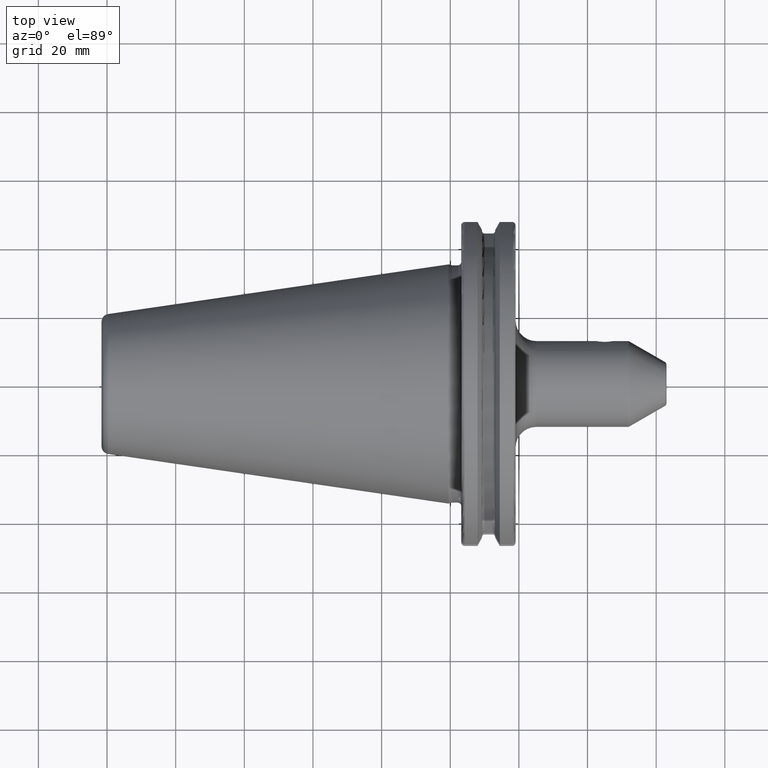
[diagram: clean part render]
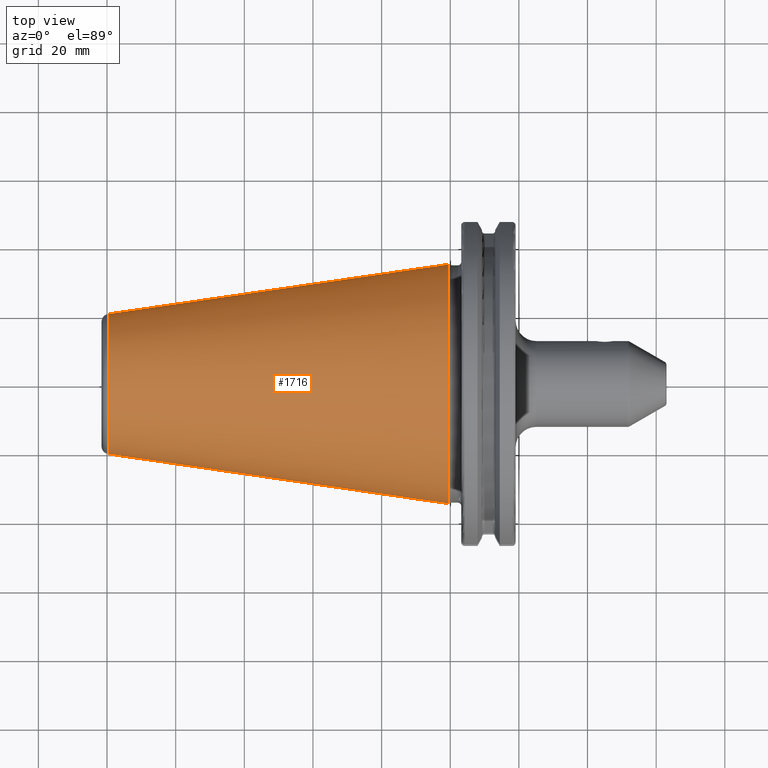
[diagram: same view with one face highlighted and labeled with its STEP entity id]
A machine part, top view. The second image highlights one B-rep face of the part: STEP entity #1716.
In plain terms, the highlighted conical surface has half-angle 8.298 deg.
Its self-contained STEP definition (entity closure, byte-faithful):
#37=CARTESIAN_POINT('',(-9.967471700563E1,0.E0,0.E0));
#38=DIRECTION('',(1.E0,0.E0,0.E0));
#39=DIRECTION('',(0.E0,1.E0,0.E0));
#40=AXIS2_PLACEMENT_3D('',#37,#38,#39);
#42=CARTESIAN_POINT('',(-4.896823332305E-1,0.E0,0.E0));
#43=DIRECTION('',(1.E0,0.E0,0.E0));
#44=DIRECTION('',(0.E0,1.E0,0.E0));
#45=AXIS2_PLACEMENT_3D('',#42,#43,#44);
#47=DIRECTION('',(-9.895312636440E-1,-1.443186691705E-1,0.E0));
#48=VECTOR('',#47,1.002343617797E2);
#49=CARTESIAN_POINT('',(-4.896823332305E-1,3.485358204157E1,0.E0));
#50=LINE('',#49,#48);
#51=DIRECTION('',(-9.895312636440E-1,1.443186691705E-1,0.E0));
#52=VECTOR('',#51,1.002343617797E2);
#53=CARTESIAN_POINT('',(-4.896823332305E-1,-3.485358204157E1,0.E0));
#54=LINE('',#53,#52);
#1384=CARTESIAN_POINT('',(-9.967471700563E1,2.038789234437E1,0.E0));
#1386=VERTEX_POINT('',#1384);
#1388=CARTESIAN_POINT('',(-9.967471700563E1,-2.038789234437E1,0.E0));
#1390=VERTEX_POINT('',#1388);
#1452=CARTESIAN_POINT('',(-4.896823332305E-1,3.485358204157E1,0.E0));
#1453=VERTEX_POINT('',#1452);
#1454=CARTESIAN_POINT('',(-4.896823332305E-1,-3.485358204157E1,0.E0));
#1455=VERTEX_POINT('',#1454);
#1702=CARTESIAN_POINT('',(-5.008219966943E1,0.E0,0.E0));
#1703=DIRECTION('',(1.E0,0.E0,0.E0));
#1704=DIRECTION('',(0.E0,-1.E0,0.E0));
#1705=AXIS2_PLACEMENT_3D('',#1702,#1703,#1704);
#1706=CONICAL_SURFACE('',#1705,2.762073719297E1,8.297826828206E0);
#1708=ORIENTED_EDGE('',*,*,#1707,.F.);
#1710=ORIENTED_EDGE('',*,*,#1709,.T.);
#1712=ORIENTED_EDGE('',*,*,#1711,.T.);
#1713=ORIENTED_EDGE('',*,*,#1695,.F.);
#1714=EDGE_LOOP('',(#1708,#1710,#1712,#1713));
#1715=FACE_OUTER_BOUND('',#1714,.F.);
#1716=ADVANCED_FACE('',(#1715),#1706,.T.);
#41=CIRCLE('',#40,2.038789234437E1);
#46=CIRCLE('',#45,3.485358204157E1);
#1695=EDGE_CURVE('',#1386,#1390,#41,.T.);
#1707=EDGE_CURVE('',#1453,#1386,#50,.T.);
#1709=EDGE_CURVE('',#1453,#1455,#46,.T.);
#1711=EDGE_CURVE('',#1455,#1390,#54,.T.);